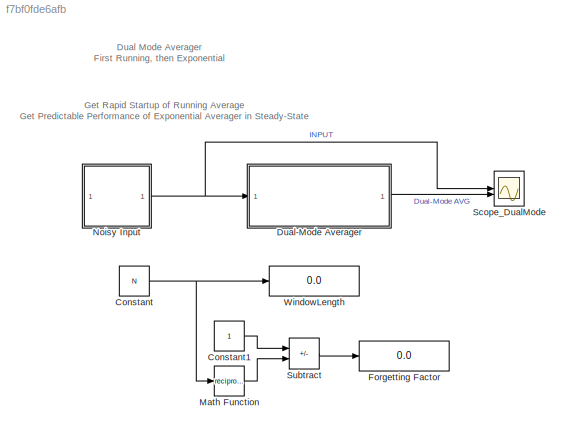
MODEL slx_f7bf0fde6afb
KIND model
CONFIG AbsTol = auto
CONFIG EnableMultiTasking = off
CONFIG FixedStep = auto
CONFIG InitFcn = N = 100;\n
CONFIG MaxStep = auto
CONFIG MinStep = auto
CONFIG PreLoadFcn = N = 100;
CONFIG RelTol = 1e-3
CONFIG SampleTimeConstraint = Unconstrained
CONFIG SolverName = VariableStepAuto
CONFIG StartTime = 0.0
CONFIG StopTime = 2000
BLOCK [Constant] Constant
  Value = N
BLOCK [Constant] Constant1
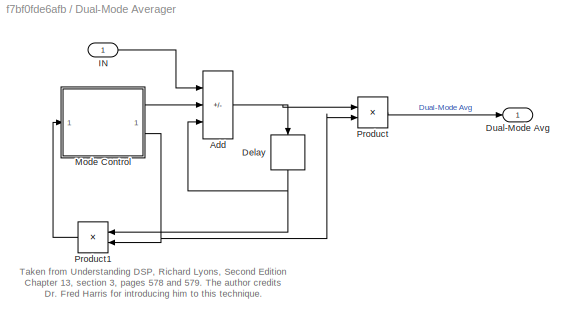
BLOCK [SubSystem] Dual-Mode Averager
BLOCK [Sum] Dual-Mode Averager/Add
  IconShape = rectangular
  Inputs = +-+
BLOCK [Delay] Dual-Mode Averager/Delay
  DelayLength = 1
  InputPortMap = u0
  NameLocation = left
BLOCK [Outport] Dual-Mode Averager/Dual-Mode Avg
  VectorParamsAs1DForOutWhenUnconnected = off
BLOCK [Inport] Dual-Mode Averager/IN
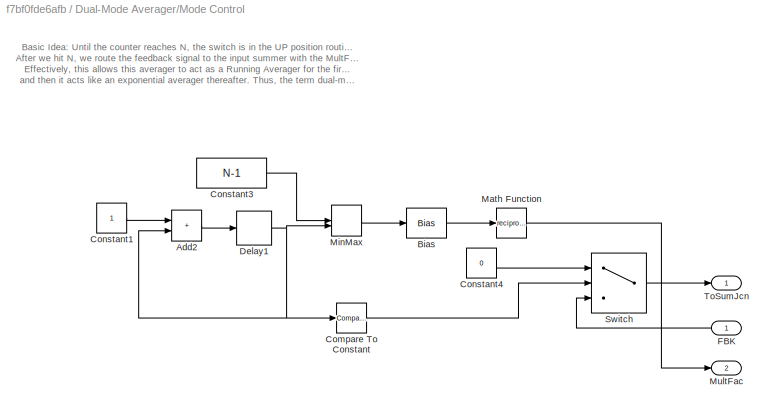
BLOCK [SubSystem] Dual-Mode Averager/Mode Control
BLOCK [Sum] Dual-Mode Averager/Mode Control/Add2
  IconShape = rectangular
BLOCK [Bias] Dual-Mode Averager/Mode Control/Bias
  Bias = 1
  SaturateOnIntegerOverflow = off
BLOCK [Reference] Dual-Mode Averager/Mode Control/Compare To Constant  REF=simulink/Logic and Bit
Operations/Compare
To Constant
  SourceBlock = simulink/Logic and Bit\nOperations/Compare\nTo Constant
  SourceType = Compare To Constant
BLOCK [Constant] Dual-Mode Averager/Mode Control/Constant1
BLOCK [Constant] Dual-Mode Averager/Mode Control/Constant3
  OutDataTypeStr = single
  SampleTime = 1
  Value = N-1
BLOCK [Constant] Dual-Mode Averager/Mode Control/Constant4
  Value = 0
BLOCK [Delay] Dual-Mode Averager/Mode Control/Delay1
  DelayLength = 1
  InitialCondition = 0
  InputPortMap = u0
BLOCK [Inport] Dual-Mode Averager/Mode Control/FBK
BLOCK [Math] Dual-Mode Averager/Mode Control/Math Function
  Operator = reciprocal
  SignedPower = on
BLOCK [MinMax] Dual-Mode Averager/Mode Control/MinMax
  Inputs = 2
BLOCK [Outport] Dual-Mode Averager/Mode Control/MultFac
  Port = 2
  VectorParamsAs1DForOutWhenUnconnected = off
BLOCK [Switch] Dual-Mode Averager/Mode Control/Switch
  Criteria = u2 > Threshold
  InputSameDT = off
  SaturateOnIntegerOverflow = off
BLOCK [Outport] Dual-Mode Averager/Mode Control/ToSumJcn
  VectorParamsAs1DForOutWhenUnconnected = off
BLOCK [Product] Dual-Mode Averager/Product
BLOCK [Product] Dual-Mode Averager/Product1
  NameLocation = top
BLOCK [Display] Forgetting Factor
  Decimation = 1
BLOCK [Math] Math Function
  Operator = reciprocal
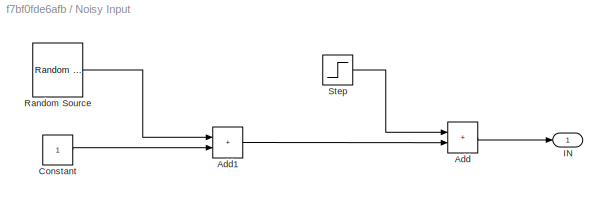
BLOCK [SubSystem] Noisy Input
BLOCK [Sum] Noisy Input/Add
  IconShape = rectangular
BLOCK [Sum] Noisy Input/Add1
  IconShape = rectangular
BLOCK [Constant] Noisy Input/Constant
  SampleTime = 1
BLOCK [Outport] Noisy Input/IN
  VectorParamsAs1DForOutWhenUnconnected = off
BLOCK [Reference] Noisy Input/Random Source  REF=dspsrcs4/Random
Source
  SourceBlock = dspsrcs4/Random\nSource
  SourceType = dsp.simulink.RandomSource
BLOCK [Step] Noisy Input/Step
  SampleTime = 0
  Time = 500
BLOCK [Scope] Scope_DualMode
  Floating = off
  NumInputPorts = 2
  ScopeSpecificationString = Simulink.scopes.TimeScopeBlockCfg('CurrentConfiguration', extmgr.ConfigurationSet(extmgr.Configuration('Core','General UI',true),extmgr.Configuration('Core','Source UI',true),extmgr.Configuration('Sources','WiredSimulink',true,'DataLoggingVariableName','ScopeData1'),extmgr.Configuration('Visuals','Time Domain',true,'SerializedDisplays',{struct('MinYLimReal','-0.91369','MaxYLimReal','3.97383','YLab...<+1936ch>
BLOCK [Sum] Subtract
  IconShape = rectangular
  Inputs = +-
BLOCK [Display] WindowLength 
  Decimation = 1
ANNOTATION (root): Dual Mode Averager First Running, then Exponential
ANNOTATION (root): Get Rapid Startup of Running Average Get Predictable Performance of Exponential Averager in Steady-State
ANNOTATION Dual-Mode Averager: Taken from Understanding DSP, Richard Lyons, Second Edition Chapter 13, section 3, pages 578 and 579. The author credits Dr. Fred Harris for introducing him to this technique.
ANNOTATION Dual-Mode Averager/Mode Control: Basic Idea: Until the counter reaches N, the switch is in the UP position routing 0 to the input summer. After we hit N, we route the feedback signal to the input summer with the MultFac applied to it. Effectively, this allows this averager to act as a Running Averager for the first 1 thru N samples and then it acts like an exponential averager thereafter. Thus, the term dual-mode averager.
LINE Constant1:1 -> Subtract:1
NET Constant:1 -> Math Function:1, WindowLength :1
NET Dual-Mode Averager/Add:1 -> Dual-Mode Averager/Delay:1, Dual-Mode Averager/Product:1
NET Dual-Mode Averager/Delay:1 -> Dual-Mode Averager/Add:3, Dual-Mode Averager/Product1:1
LINE Dual-Mode Averager/IN:1 -> Dual-Mode Averager/Add:1
LINE Dual-Mode Averager/Mode Control/Add2:1 -> Dual-Mode Averager/Mode Control/Delay1:1
LINE Dual-Mode Averager/Mode Control/Bias:1 -> Dual-Mode Averager/Mode Control/Math Function:1
LINE Dual-Mode Averager/Mode Control/Compare To Constant:1 -> Dual-Mode Averager/Mode Control/Switch:2
LINE Dual-Mode Averager/Mode Control/Constant1:1 -> Dual-Mode Averager/Mode Control/Add2:1
LINE Dual-Mode Averager/Mode Control/Constant3:1 -> Dual-Mode Averager/Mode Control/MinMax:1
LINE Dual-Mode Averager/Mode Control/Constant4:1 -> Dual-Mode Averager/Mode Control/Switch:1
NET Dual-Mode Averager/Mode Control/Delay1:1 -> Dual-Mode Averager/Mode Control/Add2:2, Dual-Mode Averager/Mode Control/Compare To Constant:1, Dual-Mode Averager/Mode Control/MinMax:2
LINE Dual-Mode Averager/Mode Control/FBK:1 -> Dual-Mode Averager/Mode Control/Switch:3
LINE Dual-Mode Averager/Mode Control/Math Function:1 -> Dual-Mode Averager/Mode Control/MultFac:1
LINE Dual-Mode Averager/Mode Control/MinMax:1 -> Dual-Mode Averager/Mode Control/Bias:1
LINE Dual-Mode Averager/Mode Control/Switch:1 -> Dual-Mode Averager/Mode Control/ToSumJcn:1
LINE Dual-Mode Averager/Mode Control:1 -> Dual-Mode Averager/Add:2
NET Dual-Mode Averager/Mode Control:2 -> Dual-Mode Averager/Product1:2, Dual-Mode Averager/Product:2
LINE Dual-Mode Averager/Product1:1 -> Dual-Mode Averager/Mode Control:1
LINE Dual-Mode Averager/Product:1 -> Dual-Mode Averager/Dual-Mode Avg:1
LINE Dual-Mode Averager:1 -> Scope_DualMode:2
LINE Math Function:1 -> Subtract:2
LINE Noisy Input/Add1:1 -> Noisy Input/Add:2
LINE Noisy Input/Add:1 -> Noisy Input/IN:1
LINE Noisy Input/Constant:1 -> Noisy Input/Add1:2
LINE Noisy Input/Random Source:1 -> Noisy Input/Add1:1
LINE Noisy Input/Step:1 -> Noisy Input/Add:1
NET Noisy Input:1 -> Dual-Mode Averager:1, Scope_DualMode:1
LINE Subtract:1 -> Forgetting Factor:1
note: NET lines group one-source signal fan-out (src -> all destinations, sorted); 1:1 wires keep LINE
